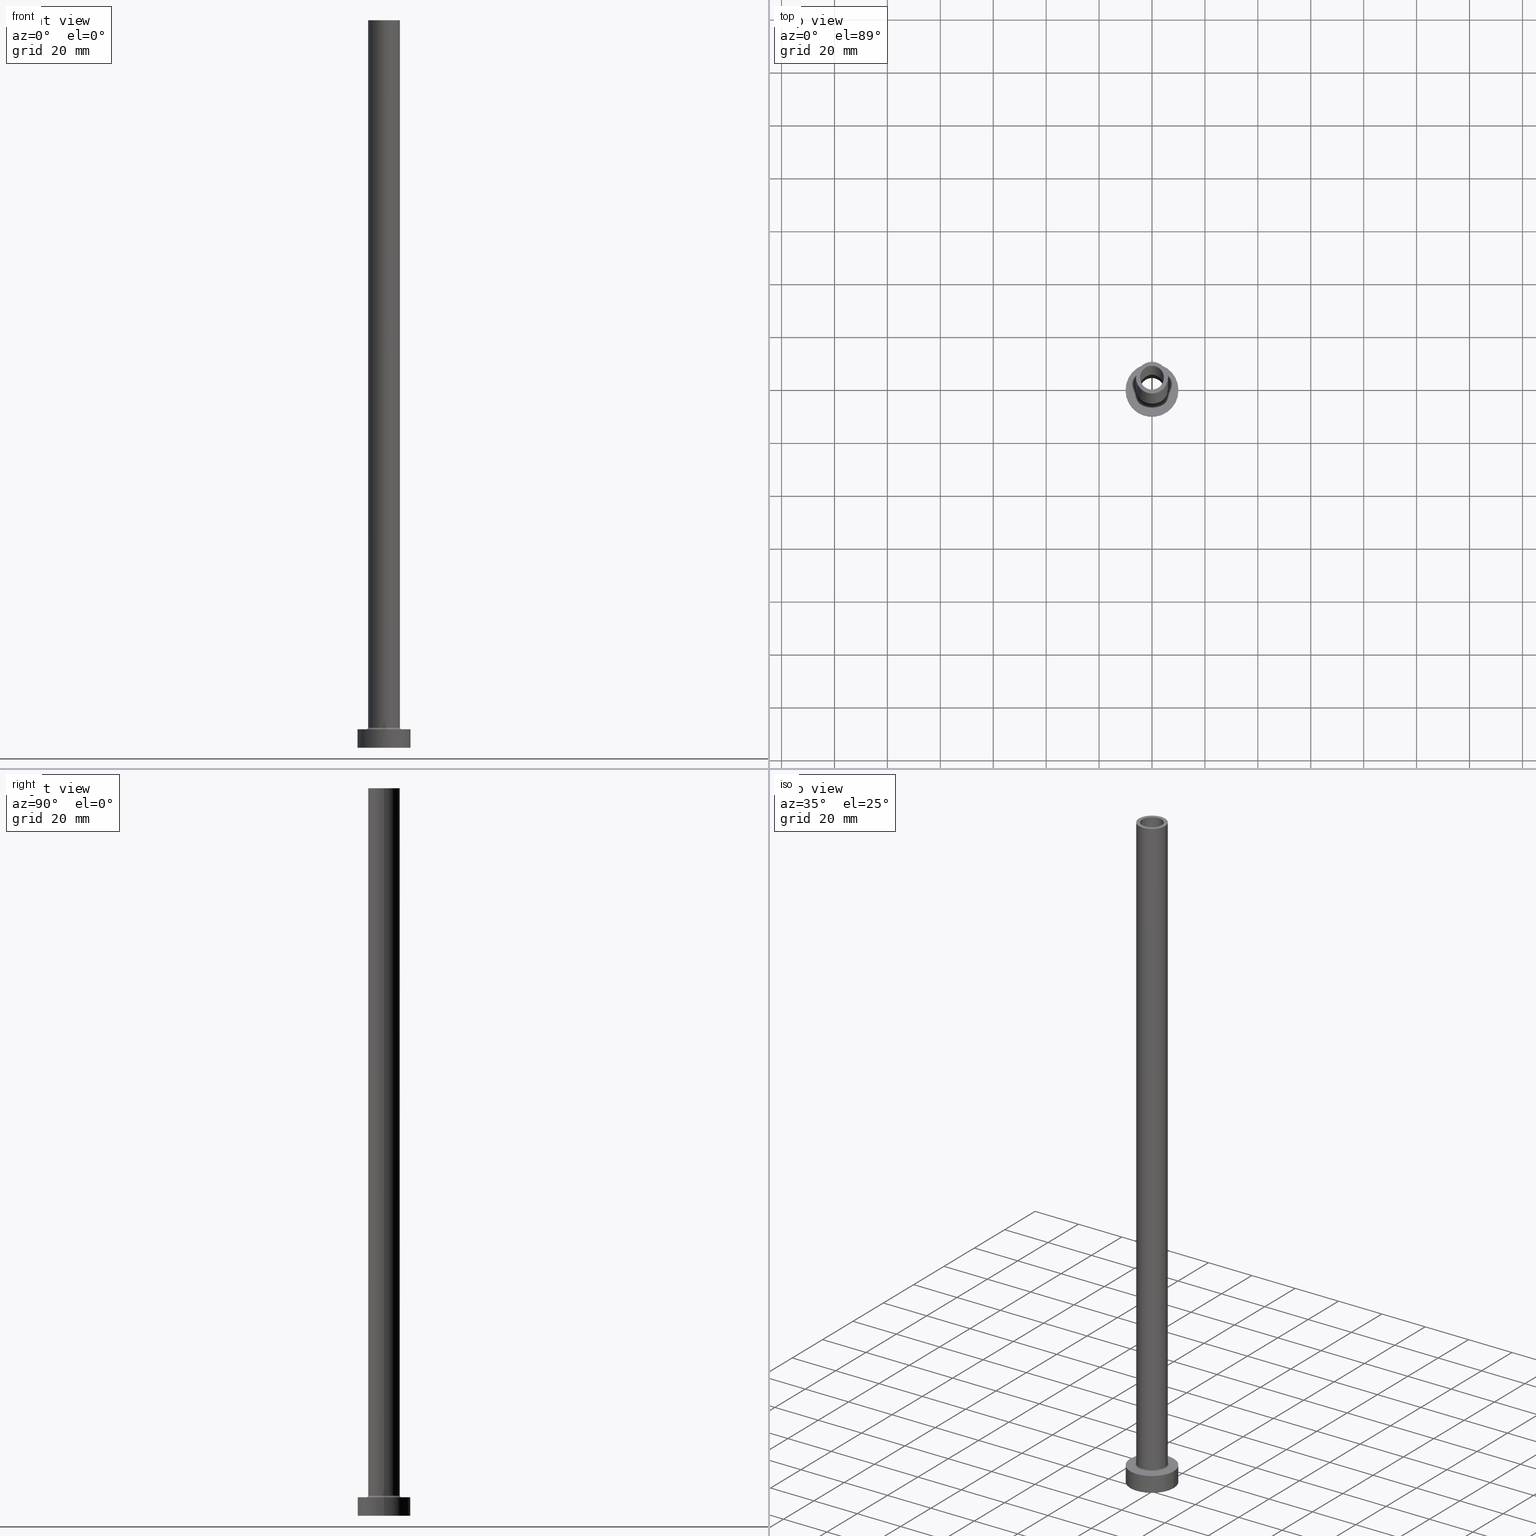
[diagram: canonical four-view strip — front | top / right | iso, engineering-drawing reading convention]
A machine part, canonical four-view strip (front | top / right | iso — engineering-drawing reading convention). The complete STEP part file that produces these views, byte-faithful:
ISO-10303-21;
HEADER;
FILE_DESCRIPTION (( 'STEP AP203' ),
    '1' );
FILE_NAME ('26cd.STEP',
    '2023-02-13T11:02:02',
    ( '' ),
    ( '' ),
    'SwSTEP 2.0',
    'SolidWorks 2019',
    '' );
FILE_SCHEMA (( 'CONFIG_CONTROL_DESIGN' ));
ENDSEC;

DATA;
#1 = ADVANCED_FACE ( 'NONE', ( #447 ), #122, .F. ) ;
#2 = DIRECTION ( 'NONE',  ( 0.000000000000000000, 0.000000000000000000, 1.000000000000000000 ) ) ;
#3 = FACE_BOUND ( 'NONE', #130, .T. ) ;
#4 = EDGE_CURVE ( 'NONE', #373, #5, #319, .T. ) ;
#5 = VERTEX_POINT ( 'NONE', #29 ) ;
#6 = CARTESIAN_POINT ( 'NONE',  ( 0.000000000000000000, 0.000000000000000000, 243.1521861300698220 ) ) ;
#7 = APPROVAL_PERSON_ORGANIZATION ( #358, #28, #440 ) ;
#8 = APPROVAL_DATE_TIME ( #330, #28 ) ;
#9 = CIRCLE ( 'NONE', #348, 0.7000000000000000666 ) ;
#10 = CALENDAR_DATE ( 2023, 13, 2 ) ;
#11 = DIRECTION ( 'NONE',  ( 1.000000000000000000, 0.000000000000000000, 0.000000000000000000 ) ) ;
#12 = DIRECTION ( 'NONE',  ( 1.000000000000000000, 0.000000000000000000, 0.000000000000000000 ) ) ;
#13 = EDGE_CURVE ( 'NONE', #404, #187, #414, .T. ) ;
#14 = ORIENTED_EDGE ( 'NONE', *, *, #385, .T. ) ;
#15 = LOCAL_TIME ( 12, 2, 2.000000000000000000, #126 ) ;
#16 = CARTESIAN_POINT ( 'NONE',  ( 10.00000000000000000, 1.224646799147353256E-15, 0.000000000000000000 ) ) ;
#17 = ORIENTED_EDGE ( 'NONE', *, *, #132, .T. ) ;
#18 = DIRECTION ( 'NONE',  ( 1.000000000000000000, 0.000000000000000000, -0.000000000000000000 ) ) ;
#19 = VERTEX_POINT ( 'NONE', #342 ) ;
#20 = DIRECTION ( 'NONE',  ( 1.000000000000000000, 0.000000000000000000, -0.000000000000000000 ) ) ;
#21 = DIRECTION ( 'NONE',  ( -0.000000000000000000, -0.000000000000000000, -1.000000000000000000 ) ) ;
#22 = ORIENTED_EDGE ( 'NONE', *, *, #222, .T. ) ;
#23 = CARTESIAN_POINT ( 'NONE',  ( 0.000000000000000000, 0.000000000000000000, 275.0000000000000000 ) ) ;
#24 = VECTOR ( 'NONE', #391, 1000.000000000000000 ) ;
#25 = EDGE_LOOP ( 'NONE', ( #380, #406, #263, #221 ) ) ;
#26 = DIRECTION ( 'NONE',  ( 0.000000000000000000, 0.000000000000000000, -1.000000000000000000 ) ) ;
#27 = CARTESIAN_POINT ( 'NONE',  ( 0.000000000000000000, 0.000000000000000000, 243.1521861300698220 ) ) ;
#28 = APPROVAL ( #329, 'NEUR�EN�' ) ;
#29 = CARTESIAN_POINT ( 'NONE',  ( -4.650000000000000355, 0.000000000000000000, 230.0000000000000284 ) ) ;
#30 = AXIS2_PLACEMENT_3D ( 'NONE', #175, #70, #107 ) ;
#31 = DIRECTION ( 'NONE',  ( 0.000000000000000000, -1.000000000000000000, 0.000000000000000000 ) ) ;
#32 = AXIS2_PLACEMENT_3D ( 'NONE', #76, #78, #407 ) ;
#33 = UNCERTAINTY_MEASURE_WITH_UNIT (LENGTH_MEASURE( 1.000000000000000082E-05 ), #171, 'distance_accuracy_value', 'NONE');
#34 = CARTESIAN_POINT ( 'NONE',  ( 0.000000000000000000, 0.000000000000000000, 0.000000000000000000 ) ) ;
#35 = EDGE_LOOP ( 'NONE', ( #109, #197, #84, #403 ) ) ;
#36 = CARTESIAN_POINT ( 'NONE',  ( 6.000000000000000888, 7.347880794884120722E-16, 7.699999999999985079 ) ) ;
#37 = VECTOR ( 'NONE', #21, 1000.000000000000000 ) ;
#38 = ORIENTED_EDGE ( 'NONE', *, *, #413, .F. ) ;
#39 = CARTESIAN_POINT ( 'NONE',  ( 0.000000000000000000, 0.000000000000000000, 7.000000000000000000 ) ) ;
#40 = DIRECTION ( 'NONE',  ( 0.000000000000000000, 0.000000000000000000, 1.000000000000000000 ) ) ;
#41 = AXIS2_PLACEMENT_3D ( 'NONE', #442, #116, #264 ) ;
#42 = PERSON_AND_ORGANIZATION ( #318, #68 ) ;
#43 = CARTESIAN_POINT ( 'NONE',  ( 0.000000000000000000, 0.000000000000000000, 275.0000000000000000 ) ) ;
#44 = CC_DESIGN_PERSON_AND_ORGANIZATION_ASSIGNMENT ( #42, #220, ( #364 ) ) ;
#45 = CARTESIAN_POINT ( 'NONE',  ( 0.000000000000000000, 0.000000000000000000, 0.000000000000000000 ) ) ;
#46 = ORIENTED_EDGE ( 'NONE', *, *, #299, .T. ) ;
#47 = ORIENTED_EDGE ( 'NONE', *, *, #212, .F. ) ;
#48 = AXIS2_PLACEMENT_3D ( 'NONE', #416, #235, #303 ) ;
#49 = CARTESIAN_POINT ( 'NONE',  ( 4.500000000000000000, 5.510910596163087583E-16, 275.0000000000000000 ) ) ;
#50 = EDGE_CURVE ( 'NONE', #226, #279, #225, .T. ) ;
#51 = APPROVAL_ROLE ( '' ) ;
#52 = EDGE_LOOP ( 'NONE', ( #254, #435, #53, #336 ) ) ;
#53 = ORIENTED_EDGE ( 'NONE', *, *, #355, .T. ) ;
#54 = FACE_OUTER_BOUND ( 'NONE', #223, .T. ) ;
#55 = ORIENTED_EDGE ( 'NONE', *, *, #13, .T. ) ;
#56 = CYLINDRICAL_SURFACE ( 'NONE', #48, 10.00000000000000000 ) ;
#57 = CC_DESIGN_DATE_AND_TIME_ASSIGNMENT ( #461, #243, ( #396 ) ) ;
#58 = AXIS2_PLACEMENT_3D ( 'NONE', #23, #307, #444 ) ;
#59 = LOCAL_TIME ( 12, 2, 2.000000000000000000, #259 ) ;
#60 = AXIS2_PLACEMENT_3D ( 'NONE', #289, #321, #285 ) ;
#61 = AXIS2_PLACEMENT_3D ( 'NONE', #239, #384, #316 ) ;
#62 = EDGE_CURVE ( 'NONE', #181, #279, #255, .T. ) ;
#63 = FACE_OUTER_BOUND ( 'NONE', #409, .T. ) ;
#64 = PERSON_AND_ORGANIZATION ( #318, #68 ) ;
#65 = EDGE_CURVE ( 'NONE', #230, #226, #204, .T. ) ;
#66 = CARTESIAN_POINT ( 'NONE',  ( 0.000000000000000000, 0.000000000000000000, 7.000000000000000000 ) ) ;
#67 = AXIS2_PLACEMENT_3D ( 'NONE', #253, #2, #361 ) ;
#68 = ORGANIZATION ( 'NEUR�EN�', 'NEUR�EN�', '' ) ;
#69 = ORIENTED_EDGE ( 'NONE', *, *, #73, .F. ) ;
#70 = DIRECTION ( 'NONE',  ( 0.000000000000000000, 0.000000000000000000, 1.000000000000000000 ) ) ;
#71 = CYLINDRICAL_SURFACE ( 'NONE', #163, 10.00000000000000000 ) ;
#72 = DIRECTION ( 'NONE',  ( 0.000000000000000000, 0.000000000000000000, 1.000000000000000000 ) ) ;
#73 = EDGE_CURVE ( 'NONE', #201, #457, #335, .T. ) ;
#74 = TOROIDAL_SURFACE ( 'NONE', #315, 6.700000000000001066, 0.6999999999999999556 ) ;
#75 = VERTEX_POINT ( 'NONE', #36 ) ;
#76 = CARTESIAN_POINT ( 'NONE',  ( 0.000000000000000000, 0.000000000000000000, 230.0000000000000284 ) ) ;
#77 = ORIENTED_EDGE ( 'NONE', *, *, #4, .F. ) ;
#78 = DIRECTION ( 'NONE',  ( 0.000000000000000000, 0.000000000000000000, 1.000000000000000000 ) ) ;
#79 = CARTESIAN_POINT ( 'NONE',  ( -10.00000000000000000, 0.000000000000000000, 7.000000000000000000 ) ) ;
#80 = ORIENTED_EDGE ( 'NONE', *, *, #200, .F. ) ;
#81 = CARTESIAN_POINT ( 'NONE',  ( 4.650000000000000355, 5.694607616035192869E-16, 230.0000000000000284 ) ) ;
#82 = ADVANCED_FACE ( 'NONE', ( #3, #431 ), #134, .T. ) ;
#83 = CARTESIAN_POINT ( 'NONE',  ( 0.000000000000000000, 0.000000000000000000, 275.0000000000000000 ) ) ;
#84 = ORIENTED_EDGE ( 'NONE', *, *, #413, .T. ) ;
#85 = AXIS2_PLACEMENT_3D ( 'NONE', #369, #298, #337 ) ;
#86 = MECHANICAL_CONTEXT ( 'NONE', #345, 'mechanical' ) ;
#87 = FACE_OUTER_BOUND ( 'NONE', #332, .T. ) ;
#88 = MANIFOLD_SOLID_BREP ( 'Odebrat vysunut�m4', #312 ) ;
#89 = EDGE_LOOP ( 'NONE', ( #313, #115, #149, #80 ) ) ;
#90 = CARTESIAN_POINT ( 'NONE',  ( 6.700000000000001066, 0.000000000000000000, 7.699999999999985079 ) ) ;
#91 = CARTESIAN_POINT ( 'NONE',  ( -4.500000000000000000, 0.000000000000000000, 275.0000000000000000 ) ) ;
#92 = EDGE_CURVE ( 'NONE', #457, #397, #388, .T. ) ;
#93 = ORIENTED_EDGE ( 'NONE', *, *, #268, .T. ) ;
#94 = CARTESIAN_POINT ( 'NONE',  ( -6.700000000000001066, 8.205133554287267548E-16, 7.699999999999985079 ) ) ;
#95 = CARTESIAN_POINT ( 'NONE',  ( 10.00000000000000000, 1.224646799147353256E-15, 7.000000000000000000 ) ) ;
#96 = ADVANCED_FACE ( 'NONE', ( #283 ), #246, .F. ) ;
#97 = VECTOR ( 'NONE', #338, 1000.000000000000000 ) ;
#98 = TOROIDAL_SURFACE ( 'NONE', #278, 6.700000000000001066, 0.6999999999999999556 ) ;
#99 = AXIS2_PLACEMENT_3D ( 'NONE', #104, #40, #20 ) ;
#100 = LOCAL_TIME ( 12, 2, 2.000000000000000000, #276 ) ;
#101 = DIRECTION ( 'NONE',  ( 0.000000000000000000, 0.000000000000000000, 1.000000000000000000 ) ) ;
#102 = PLANE ( 'NONE',  #30 ) ;
#103 = AXIS2_PLACEMENT_3D ( 'NONE', #6, #141, #137 ) ;
#104 = CARTESIAN_POINT ( 'NONE',  ( 0.000000000000000000, 0.000000000000000000, 275.0000000000000000 ) ) ;
#105 = CIRCLE ( 'NONE', #133, 6.700000000000001066 ) ;
#106 = ORIENTED_EDGE ( 'NONE', *, *, #108, .T. ) ;
#107 = DIRECTION ( 'NONE',  ( 1.000000000000000000, 0.000000000000000000, -0.000000000000000000 ) ) ;
#108 = EDGE_CURVE ( 'NONE', #331, #201, #159, .T. ) ;
#109 = ORIENTED_EDGE ( 'NONE', *, *, #456, .T. ) ;
#110 = FACE_OUTER_BOUND ( 'NONE', #236, .T. ) ;
#111 = AXIS2_PLACEMENT_3D ( 'NONE', #66, #209, #356 ) ;
#112 = FACE_OUTER_BOUND ( 'NONE', #25, .T. ) ;
#113 = ORIENTED_EDGE ( 'NONE', *, *, #385, .F. ) ;
#114 = CARTESIAN_POINT ( 'NONE',  ( 0.000000000000000000, 0.000000000000000000, 275.0000000000000000 ) ) ;
#115 = ORIENTED_EDGE ( 'NONE', *, *, #355, .F. ) ;
#116 = DIRECTION ( 'NONE',  ( -0.000000000000000000, -0.000000000000000000, -1.000000000000000000 ) ) ;
#117 = FACE_OUTER_BOUND ( 'NONE', #89, .T. ) ;
#118 = ORIENTED_EDGE ( 'NONE', *, *, #418, .F. ) ;
#119 = CARTESIAN_POINT ( 'NONE',  ( -4.650000000000000355, 0.000000000000000000, 0.000000000000000000 ) ) ;
#120 = CC_DESIGN_SECURITY_CLASSIFICATION ( #364, ( #392 ) ) ;
#121 = CIRCLE ( 'NONE', #32, 4.500000000000000000 ) ;
#122 = CYLINDRICAL_SURFACE ( 'NONE', #58, 4.500000000000000000 ) ;
#123 = CIRCLE ( 'NONE', #306, 6.000000000000000888 ) ;
#124 = CYLINDRICAL_SURFACE ( 'NONE', #143, 4.650000000000000355 ) ;
#125 = DIRECTION ( 'NONE',  ( 1.000000000000000000, 0.000000000000000000, 0.000000000000000000 ) ) ;
#126 = COORDINATED_UNIVERSAL_TIME_OFFSET ( 1, 0, .AHEAD. ) ;
#127 = ADVANCED_FACE ( 'NONE', ( #387, #63 ), #102, .F. ) ;
#128 = CARTESIAN_POINT ( 'NONE',  ( 0.000000000000000000, 0.000000000000000000, 7.000000000000000000 ) ) ;
#129 = DIRECTION ( 'NONE',  ( 0.000000000000000000, 0.000000000000000000, -1.000000000000000000 ) ) ;
#130 = EDGE_LOOP ( 'NONE', ( #176, #346 ) ) ;
#131 = APPROVAL_PERSON_ORGANIZATION ( #453, #376, #51 ) ;
#132 = EDGE_CURVE ( 'NONE', #404, #240, #277, .T. ) ;
#133 = AXIS2_PLACEMENT_3D ( 'NONE', #219, #183, #196 ) ;
#134 = PLANE ( 'NONE',  #148 ) ;
#135 = LINE ( 'NONE', #247, #24 ) ;
#136 = EDGE_CURVE ( 'NONE', #240, #404, #305, .T. ) ;
#137 = DIRECTION ( 'NONE',  ( -1.000000000000000000, 0.000000000000000000, 0.000000000000000000 ) ) ;
#138 = COORDINATED_UNIVERSAL_TIME_OFFSET ( 1, 0, .AHEAD. ) ;
#139 = ORIENTED_EDGE ( 'NONE', *, *, #4, .T. ) ;
#140 = CC_DESIGN_APPROVAL ( #376, ( #396 ) ) ;
#141 = DIRECTION ( 'NONE',  ( 0.000000000000000000, 0.000000000000000000, -1.000000000000000000 ) ) ;
#142 = CIRCLE ( 'NONE', #324, 6.000000000000000888 ) ;
#143 = AXIS2_PLACEMENT_3D ( 'NONE', #27, #273, #166 ) ;
#144 = EDGE_CURVE ( 'NONE', #331, #397, #135, .T. ) ;
#145 = DIRECTION ( 'NONE',  ( 1.000000000000000000, 0.000000000000000000, 0.000000000000000000 ) ) ;
#146 = SHAPE_DEFINITION_REPRESENTATION ( #296, #195 ) ;
#147 = CARTESIAN_POINT ( 'NONE',  ( -4.500000000000000000, 0.000000000000000000, 275.0000000000000000 ) ) ;
#148 = AXIS2_PLACEMENT_3D ( 'NONE', #351, #211, #281 ) ;
#149 = ORIENTED_EDGE ( 'NONE', *, *, #449, .T. ) ;
#150 = CARTESIAN_POINT ( 'NONE',  ( -6.000000000000000888, 0.000000000000000000, 7.699999999999985079 ) ) ;
#151 = CC_DESIGN_PERSON_AND_ORGANIZATION_ASSIGNMENT ( #238, #347, ( #396 ) ) ;
#152 = CIRCLE ( 'NONE', #193, 4.500000000000000000 ) ;
#153 = ORIENTED_EDGE ( 'NONE', *, *, #170, .T. ) ;
#154 = FACE_OUTER_BOUND ( 'NONE', #214, .T. ) ;
#155 = FACE_OUTER_BOUND ( 'NONE', #52, .T. ) ;
#156 = PRODUCT ( '26cd', '26cd', '', ( #86 ) ) ;
#157 = ORIENTED_EDGE ( 'NONE', *, *, #245, .T. ) ;
#158 = DIRECTION ( 'NONE',  ( 0.000000000000000000, 0.000000000000000000, 1.000000000000000000 ) ) ;
#159 = CIRCLE ( 'NONE', #426, 10.00000000000000000 ) ;
#160 = ORIENTED_EDGE ( 'NONE', *, *, #334, .T. ) ;
#161 = VECTOR ( 'NONE', #446, 1000.000000000000000 ) ;
#162 = EDGE_LOOP ( 'NONE', ( #47, #366, #274, #300 ) ) ;
#163 = AXIS2_PLACEMENT_3D ( 'NONE', #39, #260, #178 ) ;
#164 = CARTESIAN_POINT ( 'NONE',  ( 0.000000000000000000, 0.000000000000000000, 0.000000000000000000 ) ) ;
#165 = CC_DESIGN_PERSON_AND_ORGANIZATION_ASSIGNMENT ( #308, #168, ( #156 ) ) ;
#166 = DIRECTION ( 'NONE',  ( -1.000000000000000000, 0.000000000000000000, 0.000000000000000000 ) ) ;
#167 = DIRECTION ( 'NONE',  ( 1.224646799147353207E-16, 1.000000000000000000, -0.000000000000000000 ) ) ;
#168 = PERSON_AND_ORGANIZATION_ROLE ( 'design_owner' ) ;
#169 = DIRECTION ( 'NONE',  ( 1.000000000000000000, 0.000000000000000000, 0.000000000000000000 ) ) ;
#170 = EDGE_CURVE ( 'NONE', #201, #331, #249, .T. ) ;
#171 =( LENGTH_UNIT ( ) NAMED_UNIT ( * ) SI_UNIT ( .MILLI., .METRE. ) );
#172 = CIRCLE ( 'NONE', #61, 6.000000000000000888 ) ;
#173 = DIRECTION ( 'NONE',  ( 0.000000000000000000, 0.000000000000000000, 1.000000000000000000 ) ) ;
#174 = ADVANCED_FACE ( 'NONE', ( #395, #427 ), #215, .T. ) ;
#175 = CARTESIAN_POINT ( 'NONE',  ( 0.000000000000000000, 0.000000000000000000, 230.0000000000000284 ) ) ;
#176 = ORIENTED_EDGE ( 'NONE', *, *, #62, .T. ) ;
#177 = ADVANCED_FACE ( 'NONE', ( #117 ), #74, .F. ) ;
#178 = DIRECTION ( 'NONE',  ( -1.000000000000000000, 0.000000000000000000, 0.000000000000000000 ) ) ;
#179 = AXIS2_PLACEMENT_3D ( 'NONE', #218, #363, #297 ) ;
#180 = CALENDAR_DATE ( 2023, 13, 2 ) ;
#181 = VERTEX_POINT ( 'NONE', #192 ) ;
#182 = ORIENTED_EDGE ( 'NONE', *, *, #108, .F. ) ;
#183 = DIRECTION ( 'NONE',  ( -0.000000000000000000, -0.000000000000000000, -1.000000000000000000 ) ) ;
#184 = SECURITY_CLASSIFICATION_LEVEL ( 'unclassified' ) ;
#185 = ORIENTED_EDGE ( 'NONE', *, *, #222, .F. ) ;
#186 = DIRECTION ( 'NONE',  ( 0.000000000000000000, 0.000000000000000000, 1.000000000000000000 ) ) ;
#187 = VERTEX_POINT ( 'NONE', #258 ) ;
#188 = CARTESIAN_POINT ( 'NONE',  ( 0.000000000000000000, 0.000000000000000000, 0.000000000000000000 ) ) ;
#189 = AXIS2_PLACEMENT_3D ( 'NONE', #34, #173, #423 ) ;
#190 = ORIENTED_EDGE ( 'NONE', *, *, #311, .F. ) ;
#191 = CARTESIAN_POINT ( 'NONE',  ( 0.000000000000000000, 0.000000000000000000, 7.699999999999985079 ) ) ;
#192 = CARTESIAN_POINT ( 'NONE',  ( 6.700000000000001066, 0.000000000000000000, 6.999999999999992006 ) ) ;
#193 = AXIS2_PLACEMENT_3D ( 'NONE', #382, #450, #379 ) ;
#194 = DIRECTION ( 'NONE',  ( 0.000000000000000000, 0.000000000000000000, 1.000000000000000000 ) ) ;
#195 = ADVANCED_BREP_SHAPE_REPRESENTATION ( '26cd', ( #88, #417 ), #207 ) ;
#196 = DIRECTION ( 'NONE',  ( 1.000000000000000000, 0.000000000000000000, 0.000000000000000000 ) ) ;
#197 = ORIENTED_EDGE ( 'NONE', *, *, #311, .T. ) ;
#198 = CARTESIAN_POINT ( 'NONE',  ( 6.000000000000000888, 7.347880794884120722E-16, 275.0000000000000000 ) ) ;
#199 = VECTOR ( 'NONE', #202, 1000.000000000000000 ) ;
#200 = EDGE_CURVE ( 'NONE', #279, #181, #105, .T. ) ;
#201 = VERTEX_POINT ( 'NONE', #228 ) ;
#202 = DIRECTION ( 'NONE',  ( 0.000000000000000000, 0.000000000000000000, -1.000000000000000000 ) ) ;
#203 = APPLICATION_PROTOCOL_DEFINITION ( 'international standard', 'config_control_design', 1994, #390 ) ;
#204 = LINE ( 'NONE', #421, #37 ) ;
#205 =( NAMED_UNIT ( * ) PLANE_ANGLE_UNIT ( ) SI_UNIT ( $, .RADIAN. ) );
#206 = LINE ( 'NONE', #198, #411 ) ;
#207 =( GEOMETRIC_REPRESENTATION_CONTEXT ( 3 ) GLOBAL_UNCERTAINTY_ASSIGNED_CONTEXT ( ( #33 ) ) GLOBAL_UNIT_ASSIGNED_CONTEXT ( ( #171, #205, #314 ) ) REPRESENTATION_CONTEXT ( 'NONE', 'WORKASPACE' ) );
#208 = CC_DESIGN_PERSON_AND_ORGANIZATION_ASSIGNMENT ( #370, #213, ( #392 ) ) ;
#209 = DIRECTION ( 'NONE',  ( 0.000000000000000000, 0.000000000000000000, 1.000000000000000000 ) ) ;
#210 = APPROVAL_ROLE ( '' ) ;
#211 = DIRECTION ( 'NONE',  ( 0.000000000000000000, 0.000000000000000000, 1.000000000000000000 ) ) ;
#212 = EDGE_CURVE ( 'NONE', #226, #75, #142, .T. ) ;
#213 = PERSON_AND_ORGANIZATION_ROLE ( 'design_supplier' ) ;
#214 = EDGE_LOOP ( 'NONE', ( #118, #340, #257, #217 ) ) ;
#215 = PLANE ( 'NONE',  #99 ) ;
#216 = PERSON_AND_ORGANIZATION ( #318, #68 ) ;
#217 = ORIENTED_EDGE ( 'NONE', *, *, #212, .T. ) ;
#218 = CARTESIAN_POINT ( 'NONE',  ( 0.000000000000000000, 0.000000000000000000, 275.0000000000000000 ) ) ;
#219 = CARTESIAN_POINT ( 'NONE',  ( 0.000000000000000000, 0.000000000000000000, 7.000000000000000000 ) ) ;
#220 = PERSON_AND_ORGANIZATION_ROLE ( 'classification_officer' ) ;
#221 = ORIENTED_EDGE ( 'NONE', *, *, #92, .T. ) ;
#222 = EDGE_CURVE ( 'NONE', #187, #19, #121, .T. ) ;
#223 = EDGE_LOOP ( 'NONE', ( #190, #139, #160, #252 ) ) ;
#224 = CYLINDRICAL_SURFACE ( 'NONE', #85, 6.000000000000000888 ) ;
#225 = CIRCLE ( 'NONE', #445, 0.7000000000000000666 ) ;
#226 = VERTEX_POINT ( 'NONE', #150 ) ;
#227 = VECTOR ( 'NONE', #232, 1000.000000000000000 ) ;
#228 = CARTESIAN_POINT ( 'NONE',  ( -10.00000000000000000, 0.000000000000000000, 7.000000000000000000 ) ) ;
#229 = CIRCLE ( 'NONE', #350, 6.000000000000000888 ) ;
#230 = VERTEX_POINT ( 'NONE', #333 ) ;
#231 = APPROVAL_STATUS ( 'not_yet_approved' ) ;
#232 = DIRECTION ( 'NONE',  ( 0.000000000000000000, 0.000000000000000000, -1.000000000000000000 ) ) ;
#233 = EDGE_CURVE ( 'NONE', #302, #261, #386, .T. ) ;
#234 = ORIENTED_EDGE ( 'NONE', *, *, #13, .F. ) ;
#235 = DIRECTION ( 'NONE',  ( -0.000000000000000000, -0.000000000000000000, -1.000000000000000000 ) ) ;
#236 = EDGE_LOOP ( 'NONE', ( #290, #113 ) ) ;
#237 = DIRECTION ( 'NONE',  ( 1.000000000000000000, 0.000000000000000000, 0.000000000000000000 ) ) ;
#238 = PERSON_AND_ORGANIZATION ( #318, #68 ) ;
#239 = CARTESIAN_POINT ( 'NONE',  ( 0.000000000000000000, 0.000000000000000000, 7.699999999999985079 ) ) ;
#240 = VERTEX_POINT ( 'NONE', #291 ) ;
#241 = LINE ( 'NONE', #341, #286 ) ;
#242 = APPROVAL_PERSON_ORGANIZATION ( #64, #439, #210 ) ;
#243 = DATE_TIME_ROLE ( 'creation_date' ) ;
#244 = AXIS2_PLACEMENT_3D ( 'NONE', #455, #375, #169 ) ;
#245 = EDGE_CURVE ( 'NONE', #374, #230, #229, .T. ) ;
#246 = CYLINDRICAL_SURFACE ( 'NONE', #103, 4.650000000000000355 ) ;
#247 = CARTESIAN_POINT ( 'NONE',  ( 10.00000000000000000, 1.224646799147353256E-15, 7.000000000000000000 ) ) ;
#248 = ADVANCED_FACE ( 'NONE', ( #265, #110 ), #256, .F. ) ;
#249 = CIRCLE ( 'NONE', #111, 10.00000000000000000 ) ;
#250 = AXIS2_PLACEMENT_3D ( 'NONE', #188, #158, #18 ) ;
#251 = DIRECTION ( 'NONE',  ( 1.000000000000000000, 0.000000000000000000, 0.000000000000000000 ) ) ;
#252 = ORIENTED_EDGE ( 'NONE', *, *, #233, .T. ) ;
#253 = CARTESIAN_POINT ( 'NONE',  ( 0.000000000000000000, 0.000000000000000000, 275.0000000000000000 ) ) ;
#254 = ORIENTED_EDGE ( 'NONE', *, *, #245, .F. ) ;
#255 = CIRCLE ( 'NONE', #352, 6.700000000000001066 ) ;
#256 = PLANE ( 'NONE',  #250 ) ;
#257 = ORIENTED_EDGE ( 'NONE', *, *, #65, .T. ) ;
#258 = CARTESIAN_POINT ( 'NONE',  ( -4.500000000000000000, 0.000000000000000000, 230.0000000000000284 ) ) ;
#259 = COORDINATED_UNIVERSAL_TIME_OFFSET ( 1, 0, .AHEAD. ) ;
#260 = DIRECTION ( 'NONE',  ( -0.000000000000000000, -0.000000000000000000, -1.000000000000000000 ) ) ;
#261 = VERTEX_POINT ( 'NONE', #328 ) ;
#262 = DIRECTION ( 'NONE',  ( 0.000000000000000000, 0.000000000000000000, -1.000000000000000000 ) ) ;
#263 = ORIENTED_EDGE ( 'NONE', *, *, #73, .T. ) ;
#264 = DIRECTION ( 'NONE',  ( 1.000000000000000000, 0.000000000000000000, 0.000000000000000000 ) ) ;
#265 = FACE_BOUND ( 'NONE', #323, .T. ) ;
#266 = ORIENTED_EDGE ( 'NONE', *, *, #233, .F. ) ;
#267 = APPLICATION_PROTOCOL_DEFINITION ( 'international standard', 'config_control_design', 1994, #345 ) ;
#268 = EDGE_CURVE ( 'NONE', #230, #374, #123, .T. ) ;
#269 = CIRCLE ( 'NONE', #244, 4.650000000000000355 ) ;
#270 = LINE ( 'NONE', #410, #227 ) ;
#271 = LOCAL_TIME ( 12, 2, 2.000000000000000000, #282 ) ;
#272 = ORIENTED_EDGE ( 'NONE', *, *, #136, .T. ) ;
#273 = DIRECTION ( 'NONE',  ( 0.000000000000000000, 0.000000000000000000, -1.000000000000000000 ) ) ;
#274 = ORIENTED_EDGE ( 'NONE', *, *, #62, .F. ) ;
#275 = CALENDAR_DATE ( 2023, 13, 2 ) ;
#276 = COORDINATED_UNIVERSAL_TIME_OFFSET ( 1, 0, .AHEAD. ) ;
#277 = CIRCLE ( 'NONE', #60, 4.500000000000000000 ) ;
#278 = AXIS2_PLACEMENT_3D ( 'NONE', #191, #186, #436 ) ;
#279 = VERTEX_POINT ( 'NONE', #371 ) ;
#280 = AXIS2_PLACEMENT_3D ( 'NONE', #419, #194, #125 ) ;
#281 = DIRECTION ( 'NONE',  ( 1.000000000000000000, 0.000000000000000000, -0.000000000000000000 ) ) ;
#282 = COORDINATED_UNIVERSAL_TIME_OFFSET ( 1, 0, .AHEAD. ) ;
#283 = FACE_OUTER_BOUND ( 'NONE', #35, .T. ) ;
#284 = ADVANCED_FACE ( 'NONE', ( #87 ), #301, .F. ) ;
#285 = DIRECTION ( 'NONE',  ( 1.000000000000000000, 0.000000000000000000, 0.000000000000000000 ) ) ;
#286 = VECTOR ( 'NONE', #129, 1000.000000000000000 ) ;
#287 = EDGE_LOOP ( 'NONE', ( #17, #46, #185, #234 ) ) ;
#288 = AXIS2_PLACEMENT_3D ( 'NONE', #327, #360, #398 ) ;
#289 = CARTESIAN_POINT ( 'NONE',  ( 0.000000000000000000, 0.000000000000000000, 275.0000000000000000 ) ) ;
#290 = ORIENTED_EDGE ( 'NONE', *, *, #92, .F. ) ;
#291 = CARTESIAN_POINT ( 'NONE',  ( 4.500000000000000000, 5.510910596163087583E-16, 275.0000000000000000 ) ) ;
#292 = CARTESIAN_POINT ( 'NONE',  ( 0.000000000000000000, 0.000000000000000000, 7.699999999999985079 ) ) ;
#293 = ADVANCED_FACE ( 'NONE', ( #155 ), #224, .T. ) ;
#294 = ORIENTED_EDGE ( 'NONE', *, *, #136, .F. ) ;
#295 = DIRECTION ( 'NONE',  ( 1.000000000000000000, 0.000000000000000000, 0.000000000000000000 ) ) ;
#296 = PRODUCT_DEFINITION_SHAPE ( 'NONE', 'NONE',  #396 ) ;
#297 = DIRECTION ( 'NONE',  ( -1.000000000000000000, 0.000000000000000000, 0.000000000000000000 ) ) ;
#298 = DIRECTION ( 'NONE',  ( -0.000000000000000000, -0.000000000000000000, -1.000000000000000000 ) ) ;
#299 = EDGE_CURVE ( 'NONE', #240, #19, #443, .T. ) ;
#300 = ORIENTED_EDGE ( 'NONE', *, *, #449, .F. ) ;
#301 = CYLINDRICAL_SURFACE ( 'NONE', #372, 4.500000000000000000 ) ;
#302 = VERTEX_POINT ( 'NONE', #119 ) ;
#303 = DIRECTION ( 'NONE',  ( -1.000000000000000000, 0.000000000000000000, 0.000000000000000000 ) ) ;
#304 = AXIS2_PLACEMENT_3D ( 'NONE', #45, #434, #12 ) ;
#305 = CIRCLE ( 'NONE', #67, 4.500000000000000000 ) ;
#306 = AXIS2_PLACEMENT_3D ( 'NONE', #83, #399, #295 ) ;
#307 = DIRECTION ( 'NONE',  ( 0.000000000000000000, 0.000000000000000000, -1.000000000000000000 ) ) ;
#308 = PERSON_AND_ORGANIZATION ( #318, #68 ) ;
#309 = EDGE_LOOP ( 'NONE', ( #153, #106 ) ) ;
#310 = APPROVAL_DATE_TIME ( #343, #376 ) ;
#311 = EDGE_CURVE ( 'NONE', #373, #261, #270, .T. ) ;
#312 = CLOSED_SHELL ( 'NONE', ( #1, #96, #368, #293, #430, #389, #82, #248, #402, #174, #177, #349, #127, #284 ) ) ;
#313 = ORIENTED_EDGE ( 'NONE', *, *, #50, .F. ) ;
#314 =( NAMED_UNIT ( * ) SI_UNIT ( $, .STERADIAN. ) SOLID_ANGLE_UNIT ( ) );
#315 = AXIS2_PLACEMENT_3D ( 'NONE', #292, #72, #11 ) ;
#316 = DIRECTION ( 'NONE',  ( 1.000000000000000000, 0.000000000000000000, 0.000000000000000000 ) ) ;
#317 = CC_DESIGN_PERSON_AND_ORGANIZATION_ASSIGNMENT ( #216, #362, ( #392 ) ) ;
#318 = PERSON ( 'NEUR�EN�', 'NEUR�EN�', 'NEUR�EN�', ('NEUR�EN�'), ('NEUR�EN�'), ('NEUR�EN�') ) ;
#319 = CIRCLE ( 'NONE', #280, 4.650000000000000355 ) ;
#320 = CARTESIAN_POINT ( 'NONE',  ( 0.000000000000000000, 0.000000000000000000, 7.000000000000000000 ) ) ;
#321 = DIRECTION ( 'NONE',  ( 0.000000000000000000, 0.000000000000000000, 1.000000000000000000 ) ) ;
#322 = CC_DESIGN_APPROVAL ( #28, ( #364 ) ) ;
#323 = EDGE_LOOP ( 'NONE', ( #266, #38 ) ) ;
#324 = AXIS2_PLACEMENT_3D ( 'NONE', #365, #438, #145 ) ;
#325 = CYLINDRICAL_SURFACE ( 'NONE', #179, 6.000000000000000888 ) ;
#326 = EDGE_CURVE ( 'NONE', #19, #187, #152, .T. ) ;
#327 = CARTESIAN_POINT ( 'NONE',  ( 0.000000000000000000, 0.000000000000000000, 0.000000000000000000 ) ) ;
#328 = CARTESIAN_POINT ( 'NONE',  ( 4.650000000000000355, 5.694607616035192869E-16, 0.000000000000000000 ) ) ;
#329 = APPROVAL_STATUS ( 'not_yet_approved' ) ;
#330 = DATE_AND_TIME ( #10, #59 ) ;
#331 = VERTEX_POINT ( 'NONE', #95 ) ;
#332 = EDGE_LOOP ( 'NONE', ( #412, #272, #55, #400 ) ) ;
#333 = CARTESIAN_POINT ( 'NONE',  ( -6.000000000000000888, 0.000000000000000000, 275.0000000000000000 ) ) ;
#334 = EDGE_CURVE ( 'NONE', #5, #302, #241, .T. ) ;
#335 = LINE ( 'NONE', #79, #97 ) ;
#336 = ORIENTED_EDGE ( 'NONE', *, *, #65, .F. ) ;
#337 = DIRECTION ( 'NONE',  ( -1.000000000000000000, 0.000000000000000000, 0.000000000000000000 ) ) ;
#338 = DIRECTION ( 'NONE',  ( -0.000000000000000000, -0.000000000000000000, -1.000000000000000000 ) ) ;
#339 = EDGE_LOOP ( 'NONE', ( #93, #157 ) ) ;
#340 = ORIENTED_EDGE ( 'NONE', *, *, #268, .F. ) ;
#341 = CARTESIAN_POINT ( 'NONE',  ( -4.650000000000000355, 0.000000000000000000, 243.1521861300698220 ) ) ;
#342 = CARTESIAN_POINT ( 'NONE',  ( 4.500000000000000000, 5.510910596163087583E-16, 230.0000000000000284 ) ) ;
#343 = DATE_AND_TIME ( #275, #15 ) ;
#344 = PRODUCT_RELATED_PRODUCT_CATEGORY ( 'detail', '', ( #156 ) ) ;
#345 = APPLICATION_CONTEXT ( 'configuration controlled 3d designs of mechanical parts and assemblies' ) ;
#346 = ORIENTED_EDGE ( 'NONE', *, *, #200, .T. ) ;
#347 = PERSON_AND_ORGANIZATION_ROLE ( 'creator' ) ;
#348 = AXIS2_PLACEMENT_3D ( 'NONE', #90, #31, #26 ) ;
#349 = ADVANCED_FACE ( 'NONE', ( #54 ), #124, .F. ) ;
#350 = AXIS2_PLACEMENT_3D ( 'NONE', #43, #433, #367 ) ;
#351 = CARTESIAN_POINT ( 'NONE',  ( 0.000000000000000000, 0.000000000000000000, 7.000000000000000000 ) ) ;
#352 = AXIS2_PLACEMENT_3D ( 'NONE', #128, #415, #237 ) ;
#353 = CALENDAR_DATE ( 2023, 13, 2 ) ;
#354 = DATE_AND_TIME ( #353, #271 ) ;
#355 = EDGE_CURVE ( 'NONE', #75, #226, #172, .T. ) ;
#356 = DIRECTION ( 'NONE',  ( 1.000000000000000000, 0.000000000000000000, 0.000000000000000000 ) ) ;
#357 = APPROVAL_DATE_TIME ( #354, #439 ) ;
#358 = PERSON_AND_ORGANIZATION ( #318, #68 ) ;
#359 = ORIENTED_EDGE ( 'NONE', *, *, #132, .F. ) ;
#360 = DIRECTION ( 'NONE',  ( 0.000000000000000000, 0.000000000000000000, 1.000000000000000000 ) ) ;
#361 = DIRECTION ( 'NONE',  ( 1.000000000000000000, 0.000000000000000000, 0.000000000000000000 ) ) ;
#362 = PERSON_AND_ORGANIZATION_ROLE ( 'creator' ) ;
#363 = DIRECTION ( 'NONE',  ( -0.000000000000000000, -0.000000000000000000, -1.000000000000000000 ) ) ;
#364 = SECURITY_CLASSIFICATION ( '', '', #184 ) ;
#365 = CARTESIAN_POINT ( 'NONE',  ( 0.000000000000000000, 0.000000000000000000, 7.699999999999985079 ) ) ;
#366 = ORIENTED_EDGE ( 'NONE', *, *, #50, .T. ) ;
#367 = DIRECTION ( 'NONE',  ( 1.000000000000000000, 0.000000000000000000, 0.000000000000000000 ) ) ;
#368 = ADVANCED_FACE ( 'NONE', ( #460 ), #98, .F. ) ;
#369 = CARTESIAN_POINT ( 'NONE',  ( 0.000000000000000000, 0.000000000000000000, 275.0000000000000000 ) ) ;
#370 = PERSON_AND_ORGANIZATION ( #318, #68 ) ;
#371 = CARTESIAN_POINT ( 'NONE',  ( -6.700000000000001066, 8.205133554287267548E-16, 6.999999999999992006 ) ) ;
#372 = AXIS2_PLACEMENT_3D ( 'NONE', #114, #262, #405 ) ;
#373 = VERTEX_POINT ( 'NONE', #81 ) ;
#374 = VERTEX_POINT ( 'NONE', #394 ) ;
#375 = DIRECTION ( 'NONE',  ( 0.000000000000000000, 0.000000000000000000, 1.000000000000000000 ) ) ;
#376 = APPROVAL ( #231, 'NEUR�EN�' ) ;
#377 = ORIENTED_EDGE ( 'NONE', *, *, #326, .T. ) ;
#378 = DIRECTION ( 'NONE',  ( -0.000000000000000000, -0.000000000000000000, -1.000000000000000000 ) ) ;
#379 = DIRECTION ( 'NONE',  ( 1.000000000000000000, 0.000000000000000000, 0.000000000000000000 ) ) ;
#380 = ORIENTED_EDGE ( 'NONE', *, *, #144, .F. ) ;
#381 = CALENDAR_DATE ( 2023, 13, 2 ) ;
#382 = CARTESIAN_POINT ( 'NONE',  ( 0.000000000000000000, 0.000000000000000000, 230.0000000000000284 ) ) ;
#383 = CARTESIAN_POINT ( 'NONE',  ( -10.00000000000000000, 0.000000000000000000, 0.000000000000000000 ) ) ;
#384 = DIRECTION ( 'NONE',  ( 0.000000000000000000, 0.000000000000000000, 1.000000000000000000 ) ) ;
#385 = EDGE_CURVE ( 'NONE', #397, #457, #458, .T. ) ;
#386 = CIRCLE ( 'NONE', #304, 4.650000000000000355 ) ;
#387 = FACE_BOUND ( 'NONE', #441, .T. ) ;
#388 = CIRCLE ( 'NONE', #189, 10.00000000000000000 ) ;
#389 = ADVANCED_FACE ( 'NONE', ( #112 ), #71, .T. ) ;
#390 = APPLICATION_CONTEXT ( 'configuration controlled 3d designs of mechanical parts and assemblies' ) ;
#391 = DIRECTION ( 'NONE',  ( -0.000000000000000000, -0.000000000000000000, -1.000000000000000000 ) ) ;
#392 = PRODUCT_DEFINITION_FORMATION_WITH_SPECIFIED_SOURCE ( 'LIBOVOLN�', '', #156, .NOT_KNOWN. ) ;
#393 = ORIENTED_EDGE ( 'NONE', *, *, #456, .F. ) ;
#394 = CARTESIAN_POINT ( 'NONE',  ( 6.000000000000000888, 7.347880794884120722E-16, 275.0000000000000000 ) ) ;
#395 = FACE_BOUND ( 'NONE', #452, .T. ) ;
#396 = PRODUCT_DEFINITION ( 'NEZN�M�', '', #392, #422 ) ;
#397 = VERTEX_POINT ( 'NONE', #16 ) ;
#398 = DIRECTION ( 'NONE',  ( 1.000000000000000000, 0.000000000000000000, 0.000000000000000000 ) ) ;
#399 = DIRECTION ( 'NONE',  ( 0.000000000000000000, 0.000000000000000000, 1.000000000000000000 ) ) ;
#400 = ORIENTED_EDGE ( 'NONE', *, *, #326, .F. ) ;
#401 = DATE_AND_TIME ( #180, #408 ) ;
#402 = ADVANCED_FACE ( 'NONE', ( #154 ), #325, .T. ) ;
#403 = ORIENTED_EDGE ( 'NONE', *, *, #334, .F. ) ;
#404 = VERTEX_POINT ( 'NONE', #147 ) ;
#405 = DIRECTION ( 'NONE',  ( -1.000000000000000000, 0.000000000000000000, 0.000000000000000000 ) ) ;
#406 = ORIENTED_EDGE ( 'NONE', *, *, #170, .F. ) ;
#407 = DIRECTION ( 'NONE',  ( 1.000000000000000000, 0.000000000000000000, 0.000000000000000000 ) ) ;
#408 = LOCAL_TIME ( 12, 2, 2.000000000000000000, #138 ) ;
#409 = EDGE_LOOP ( 'NONE', ( #393, #77 ) ) ;
#410 = CARTESIAN_POINT ( 'NONE',  ( 4.650000000000000355, 5.694607616035192869E-16, 243.1521861300698220 ) ) ;
#411 = VECTOR ( 'NONE', #378, 1000.000000000000000 ) ;
#412 = ORIENTED_EDGE ( 'NONE', *, *, #299, .F. ) ;
#413 = EDGE_CURVE ( 'NONE', #261, #302, #429, .T. ) ;
#414 = LINE ( 'NONE', #91, #199 ) ;
#415 = DIRECTION ( 'NONE',  ( -0.000000000000000000, -0.000000000000000000, -1.000000000000000000 ) ) ;
#416 = CARTESIAN_POINT ( 'NONE',  ( 0.000000000000000000, 0.000000000000000000, 7.000000000000000000 ) ) ;
#417 = AXIS2_PLACEMENT_3D ( 'NONE', #164, #420, #459 ) ;
#418 = EDGE_CURVE ( 'NONE', #374, #75, #206, .T. ) ;
#419 = CARTESIAN_POINT ( 'NONE',  ( 0.000000000000000000, 0.000000000000000000, 230.0000000000000284 ) ) ;
#420 = DIRECTION ( 'NONE',  ( 0.000000000000000000, 0.000000000000000000, 1.000000000000000000 ) ) ;
#421 = CARTESIAN_POINT ( 'NONE',  ( -6.000000000000000888, 0.000000000000000000, 275.0000000000000000 ) ) ;
#422 = DESIGN_CONTEXT ( 'detailed design', #390, 'design' ) ;
#423 = DIRECTION ( 'NONE',  ( 1.000000000000000000, 0.000000000000000000, 0.000000000000000000 ) ) ;
#424 = CC_DESIGN_DATE_AND_TIME_ASSIGNMENT ( #401, #428, ( #364 ) ) ;
#425 = APPROVAL_STATUS ( 'not_yet_approved' ) ;
#426 = AXIS2_PLACEMENT_3D ( 'NONE', #320, #101, #251 ) ;
#427 = FACE_OUTER_BOUND ( 'NONE', #339, .T. ) ;
#428 = DATE_TIME_ROLE ( 'classification_date' ) ;
#429 = CIRCLE ( 'NONE', #41, 4.650000000000000355 ) ;
#430 = ADVANCED_FACE ( 'NONE', ( #448 ), #56, .T. ) ;
#431 = FACE_OUTER_BOUND ( 'NONE', #309, .T. ) ;
#432 = ORIENTED_EDGE ( 'NONE', *, *, #144, .T. ) ;
#433 = DIRECTION ( 'NONE',  ( 0.000000000000000000, 0.000000000000000000, 1.000000000000000000 ) ) ;
#434 = DIRECTION ( 'NONE',  ( -0.000000000000000000, -0.000000000000000000, -1.000000000000000000 ) ) ;
#435 = ORIENTED_EDGE ( 'NONE', *, *, #418, .T. ) ;
#436 = DIRECTION ( 'NONE',  ( 1.000000000000000000, 0.000000000000000000, 0.000000000000000000 ) ) ;
#437 = EDGE_LOOP ( 'NONE', ( #182, #432, #14, #69 ) ) ;
#438 = DIRECTION ( 'NONE',  ( 0.000000000000000000, 0.000000000000000000, 1.000000000000000000 ) ) ;
#439 = APPROVAL ( #425, 'NEUR�EN�' ) ;
#440 = APPROVAL_ROLE ( '' ) ;
#441 = EDGE_LOOP ( 'NONE', ( #22, #377 ) ) ;
#442 = CARTESIAN_POINT ( 'NONE',  ( 0.000000000000000000, 0.000000000000000000, 0.000000000000000000 ) ) ;
#443 = LINE ( 'NONE', #49, #161 ) ;
#444 = DIRECTION ( 'NONE',  ( -1.000000000000000000, 0.000000000000000000, 0.000000000000000000 ) ) ;
#445 = AXIS2_PLACEMENT_3D ( 'NONE', #94, #167, #454 ) ;
#446 = DIRECTION ( 'NONE',  ( 0.000000000000000000, 0.000000000000000000, -1.000000000000000000 ) ) ;
#447 = FACE_OUTER_BOUND ( 'NONE', #287, .T. ) ;
#448 = FACE_OUTER_BOUND ( 'NONE', #437, .T. ) ;
#449 = EDGE_CURVE ( 'NONE', #75, #181, #9, .T. ) ;
#450 = DIRECTION ( 'NONE',  ( 0.000000000000000000, 0.000000000000000000, 1.000000000000000000 ) ) ;
#451 = CC_DESIGN_APPROVAL ( #439, ( #392 ) ) ;
#452 = EDGE_LOOP ( 'NONE', ( #359, #294 ) ) ;
#453 = PERSON_AND_ORGANIZATION ( #318, #68 ) ;
#454 = DIRECTION ( 'NONE',  ( -1.000000000000000000, 1.224646799147353454E-16, 0.000000000000000000 ) ) ;
#455 = CARTESIAN_POINT ( 'NONE',  ( 0.000000000000000000, 0.000000000000000000, 230.0000000000000284 ) ) ;
#456 = EDGE_CURVE ( 'NONE', #5, #373, #269, .T. ) ;
#457 = VERTEX_POINT ( 'NONE', #383 ) ;
#458 = CIRCLE ( 'NONE', #288, 10.00000000000000000 ) ;
#459 = DIRECTION ( 'NONE',  ( 1.000000000000000000, 0.000000000000000000, 0.000000000000000000 ) ) ;
#460 = FACE_OUTER_BOUND ( 'NONE', #162, .T. ) ;
#461 = DATE_AND_TIME ( #381, #100 ) ;
ENDSEC;
END-ISO-10303-21;
